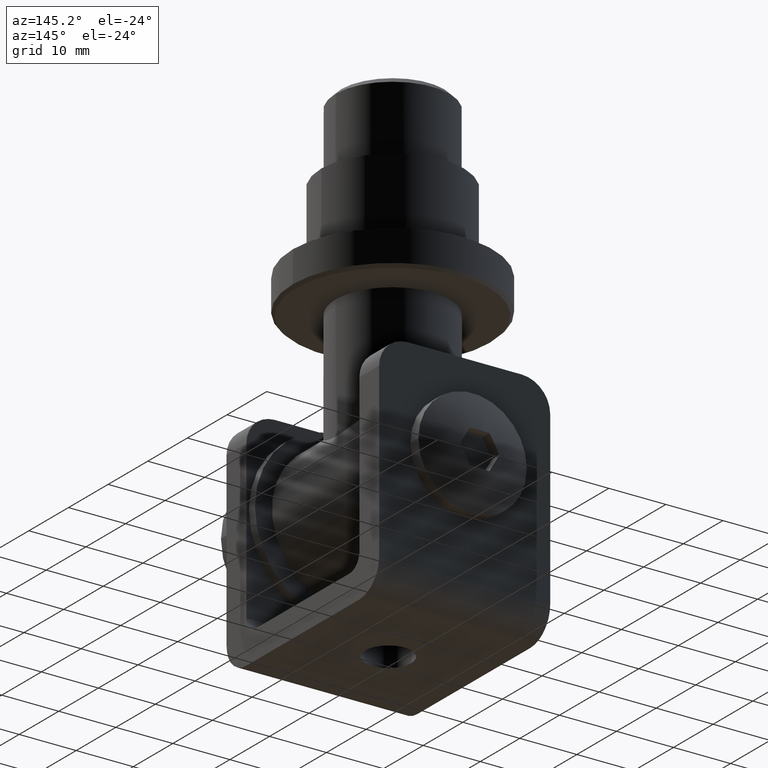
[diagram: clean part render]
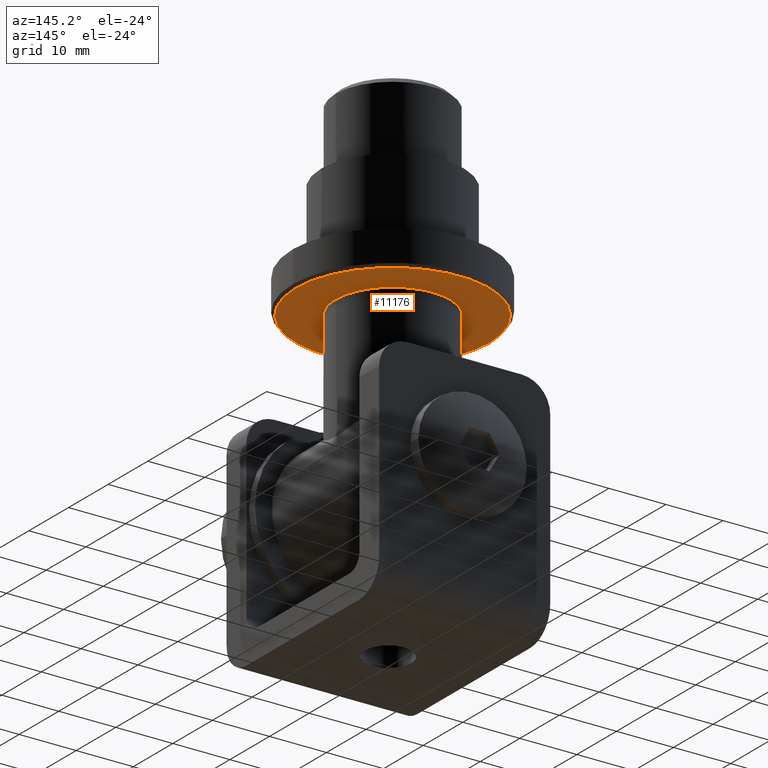
[diagram: same view with one face highlighted and labeled with its STEP entity id]
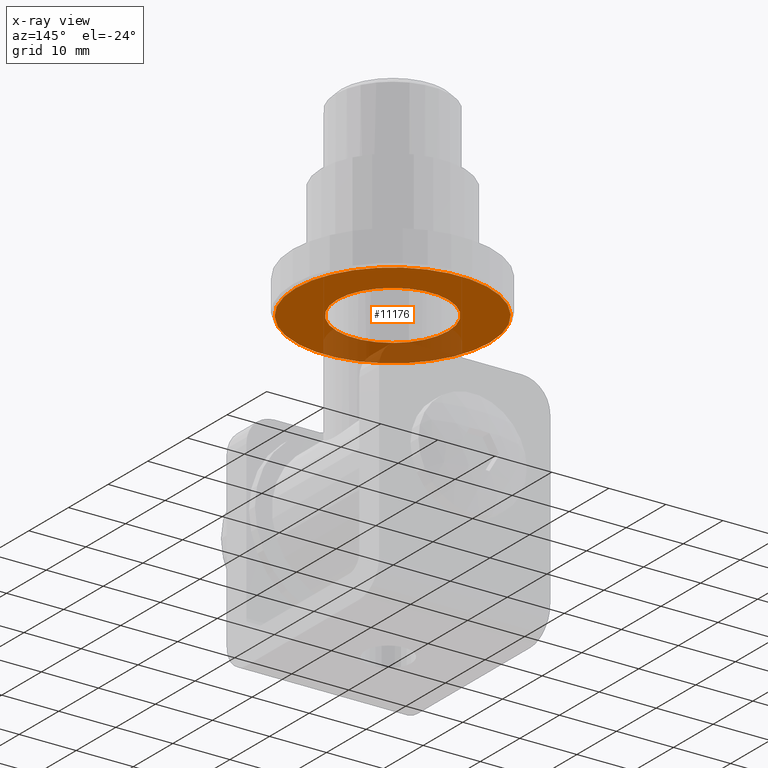
[diagram: x-ray of the same camera — body ghosted, the highlighted face saturated]
A machine part, auxiliary view. The second image highlights one B-rep face of the part: STEP entity #11176.
The next image is the same camera in x-ray: the body ghosted, the highlighted face saturated — about 26% of this face is hidden behind the body in this view.
In plain terms, the highlighted planar face has unit normal (0, 0, 1).
Its self-contained STEP definition (entity closure, byte-faithful):
#309 = DIRECTION ( 'NONE',  ( -0.000000000000000000, -0.000000000000000000, 1.000000000000000000 ) ) ;
#460 = EDGE_CURVE ( 'NONE', #7024, #13154, #3186, .T. ) ;
#1276 = DIRECTION ( 'NONE',  ( 0.000000000000000000, 0.000000000000000000, -1.000000000000000000 ) ) ;
#2966 = DIRECTION ( 'NONE',  ( -0.000000000000000000, -0.000000000000000000, 1.000000000000000000 ) ) ;
#3186 = CIRCLE ( 'NONE', #11294, 16.99999999999998934 ) ;
#3329 = FACE_BOUND ( 'NONE', #9271, .T. ) ;
#3706 = DIRECTION ( 'NONE',  ( 0.000000000000000000, 0.000000000000000000, -1.000000000000000000 ) ) ;
#3727 = CIRCLE ( 'NONE', #5850, 9.750000000000001776 ) ;
#4036 = DIRECTION ( 'NONE',  ( 1.000000000000000000, 0.000000000000000000, 0.000000000000000000 ) ) ;
#5179 = CARTESIAN_POINT ( 'NONE',  ( -9.750000000000001776, 0.000000000000000000, -10.00000000000000178 ) ) ;
#5311 = CARTESIAN_POINT ( 'NONE',  ( 0.000000000000000000, 0.000000000000000000, -10.00000000000000178 ) ) ;
#5324 = EDGE_CURVE ( 'NONE', #13760, #12716, #15803, .T. ) ;
#5636 = PLANE ( 'NONE',  #15881 ) ;
#5850 = AXIS2_PLACEMENT_3D ( 'NONE', #11758, #2966, #10408 ) ;
#6993 = ORIENTED_EDGE ( 'NONE', *, *, #5324, .T. ) ;
#7024 = VERTEX_POINT ( 'NONE', #12101 ) ;
#7262 = CARTESIAN_POINT ( 'NONE',  ( 9.750000000000001776, 1.194030629168669667E-15, -10.00000000000000178 ) ) ;
#7303 = CARTESIAN_POINT ( 'NONE',  ( 0.000000000000000000, 0.000000000000000000, -10.00000000000000178 ) ) ;
#7503 = ORIENTED_EDGE ( 'NONE', *, *, #11486, .T. ) ;
#7907 = DIRECTION ( 'NONE',  ( 1.000000000000000000, 0.000000000000000000, 0.000000000000000000 ) ) ;
#8448 = DIRECTION ( 'NONE',  ( 0.000000000000000000, -0.000000000000000000, 1.000000000000000000 ) ) ;
#8690 = CARTESIAN_POINT ( 'NONE',  ( 0.000000000000000000, 0.000000000000000000, -10.00000000000000178 ) ) ;
#9078 = DIRECTION ( 'NONE',  ( 1.000000000000000000, 0.000000000000000000, 0.000000000000000000 ) ) ;
#9271 = EDGE_LOOP ( 'NONE', ( #7503, #6993 ) ) ;
#9587 = DIRECTION ( 'NONE',  ( 1.000000000000000000, 0.000000000000000000, 0.000000000000000000 ) ) ;
#10408 = DIRECTION ( 'NONE',  ( 1.000000000000000000, 0.000000000000000000, 0.000000000000000000 ) ) ;
#10523 = EDGE_CURVE ( 'NONE', #13154, #7024, #12306, .T. ) ;
#10842 = AXIS2_PLACEMENT_3D ( 'NONE', #8690, #1276, #9078 ) ;
#11176 = ADVANCED_FACE ( 'NONE', ( #3329, #12894 ), #5636, .F. ) ;
#11226 = AXIS2_PLACEMENT_3D ( 'NONE', #5311, #309, #7907 ) ;
#11294 = AXIS2_PLACEMENT_3D ( 'NONE', #7303, #3706, #4036 ) ;
#11486 = EDGE_CURVE ( 'NONE', #12716, #13760, #3727, .T. ) ;
#11758 = CARTESIAN_POINT ( 'NONE',  ( 0.000000000000000000, 0.000000000000000000, -10.00000000000000178 ) ) ;
#12101 = CARTESIAN_POINT ( 'NONE',  ( -16.99999999999998934, 2.112515728529183672E-15, -10.00000000000000178 ) ) ;
#12306 = CIRCLE ( 'NONE', #10842, 16.99999999999998934 ) ;
#12716 = VERTEX_POINT ( 'NONE', #5179 ) ;
#12894 = FACE_OUTER_BOUND ( 'NONE', #13332, .T. ) ;
#13154 = VERTEX_POINT ( 'NONE', #13185 ) ;
#13185 = CARTESIAN_POINT ( 'NONE',  ( 16.99999999999998934, 0.000000000000000000, -10.00000000000000178 ) ) ;
#13270 = CARTESIAN_POINT ( 'NONE',  ( 0.000000000000000000, 17.50000000000000000, -10.00000000000000178 ) ) ;
#13332 = EDGE_LOOP ( 'NONE', ( #15421, #14189 ) ) ;
#13760 = VERTEX_POINT ( 'NONE', #7262 ) ;
#14189 = ORIENTED_EDGE ( 'NONE', *, *, #460, .T. ) ;
#15421 = ORIENTED_EDGE ( 'NONE', *, *, #10523, .T. ) ;
#15803 = CIRCLE ( 'NONE', #11226, 9.750000000000001776 ) ;
#15881 = AXIS2_PLACEMENT_3D ( 'NONE', #13270, #8448, #9587 ) ;